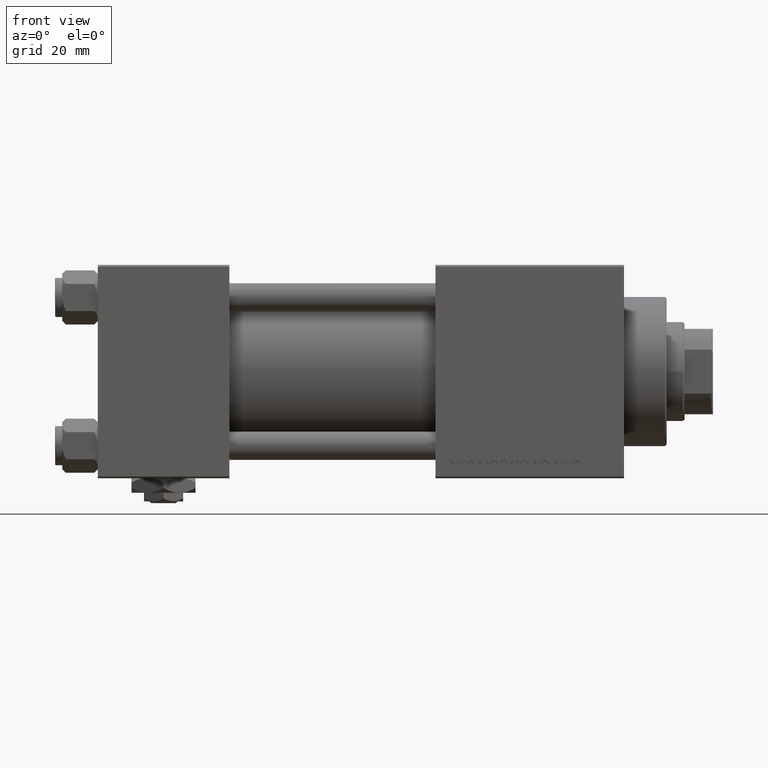
[diagram: clean part render]
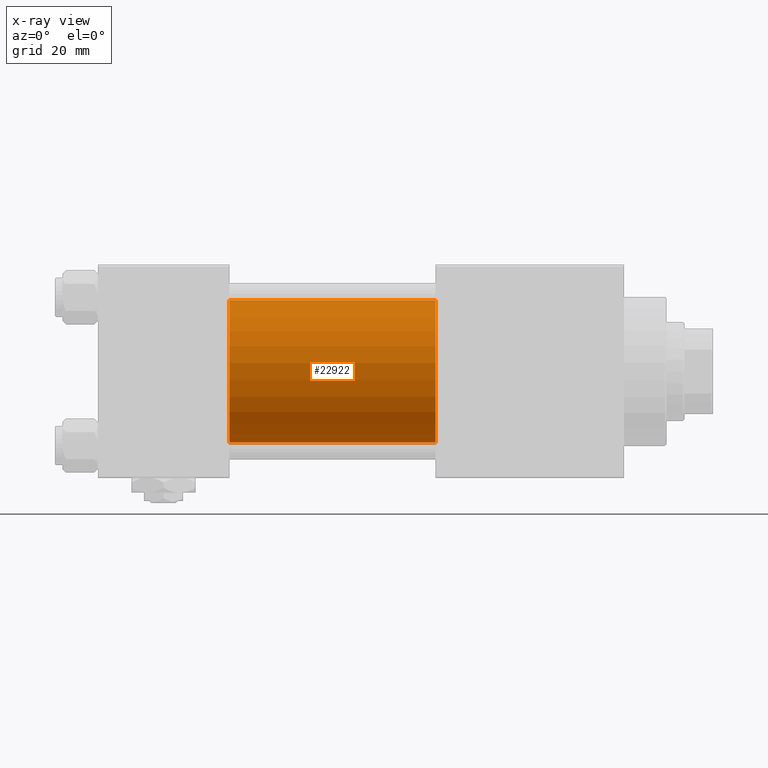
[diagram: x-ray — body ghosted, one internal face saturated and labeled with its STEP entity id]
A machine part, front view, then the same camera in x-ray: the body is ghosted and one INTERNAL B-rep face — a face not visible from any outside direction — is saturated and labeled: STEP entity #22922.
In plain terms, the highlighted cylindrical surface (partial cylindrical patch) has radius 20 mm, axis along (-1, -0, -0).
Its self-contained STEP definition (entity closure, byte-faithful):
#1355 = EDGE_CURVE ( 'NONE', #34434, #28710, #23302, .T. ) ;
#5705 = LINE ( 'NONE', #21802, #45223 ) ;
#8436 = ORIENTED_EDGE ( 'NONE', *, *, #29614, .F. ) ;
#11823 = CARTESIAN_POINT ( 'NONE',  ( 37.00000000000000000, -1.527916156705046464E-16, -20.00000000000000000 ) ) ;
#12163 = AXIS2_PLACEMENT_3D ( 'NONE', #46679, #42208, #15037 ) ;
#12575 = DIRECTION ( 'NONE',  ( 1.000000000000000000, 0.000000000000000000, 0.000000000000000000 ) ) ;
#14463 = AXIS2_PLACEMENT_3D ( 'NONE', #45313, #32937, #21558 ) ;
#15037 = DIRECTION ( 'NONE',  ( 0.000000000000000000, 0.000000000000000000, -1.000000000000000000 ) ) ;
#15438 = CARTESIAN_POINT ( 'NONE',  ( 95.00000000000000000, -1.527916156705046464E-16, -20.00000000000000000 ) ) ;
#15958 = LINE ( 'NONE', #15438, #41259 ) ;
#17306 = EDGE_LOOP ( 'NONE', ( #48999, #34643, #8436, #39139 ) ) ;
#18310 = CARTESIAN_POINT ( 'NONE',  ( 95.00000000000000000, -2.602085213965210642E-15, 20.00000000000000000 ) ) ;
#19073 = AXIS2_PLACEMENT_3D ( 'NONE', #48729, #12575, #28698 ) ;
#19578 = CARTESIAN_POINT ( 'NONE',  ( 95.00000000000000000, -1.527916156705046464E-16, -20.00000000000000000 ) ) ;
#21558 = DIRECTION ( 'NONE',  ( 0.000000000000000000, 0.000000000000000000, 1.000000000000000000 ) ) ;
#21802 = CARTESIAN_POINT ( 'NONE',  ( 95.00000000000000000, -2.602085213965210642E-15, 20.00000000000000000 ) ) ;
#22922 = ADVANCED_FACE ( 'NONE', ( #25011 ), #29231, .F. ) ;
#23302 = CIRCLE ( 'NONE', #19073, 20.00000000000000000 ) ;
#25011 = FACE_OUTER_BOUND ( 'NONE', #17306, .T. ) ;
#25662 = CIRCLE ( 'NONE', #12163, 20.00000000000000000 ) ;
#26820 = DIRECTION ( 'NONE',  ( -1.000000000000000000, -0.000000000000000000, -0.000000000000000000 ) ) ;
#28698 = DIRECTION ( 'NONE',  ( 0.000000000000000000, 0.000000000000000000, -1.000000000000000000 ) ) ;
#28710 = VERTEX_POINT ( 'NONE', #19578 ) ;
#29231 = CYLINDRICAL_SURFACE ( 'NONE', #14463, 20.00000000000000000 ) ;
#29614 = EDGE_CURVE ( 'NONE', #41429, #47638, #25662, .T. ) ;
#32937 = DIRECTION ( 'NONE',  ( -1.000000000000000000, -0.000000000000000000, -0.000000000000000000 ) ) ;
#34434 = VERTEX_POINT ( 'NONE', #18310 ) ;
#34643 = ORIENTED_EDGE ( 'NONE', *, *, #51996, .T. ) ;
#38680 = EDGE_CURVE ( 'NONE', #34434, #41429, #5705, .T. ) ;
#39139 = ORIENTED_EDGE ( 'NONE', *, *, #38680, .F. ) ;
#41259 = VECTOR ( 'NONE', #51840, 1000.000000000000000 ) ;
#41429 = VERTEX_POINT ( 'NONE', #49877 ) ;
#42208 = DIRECTION ( 'NONE',  ( 1.000000000000000000, 0.000000000000000000, 0.000000000000000000 ) ) ;
#45223 = VECTOR ( 'NONE', #26820, 1000.000000000000000 ) ;
#45313 = CARTESIAN_POINT ( 'NONE',  ( 95.00000000000000000, -2.602085213965210642E-15, 0.000000000000000000 ) ) ;
#46679 = CARTESIAN_POINT ( 'NONE',  ( 37.00000000000000000, -2.602085213965210642E-15, 0.000000000000000000 ) ) ;
#47638 = VERTEX_POINT ( 'NONE', #11823 ) ;
#48729 = CARTESIAN_POINT ( 'NONE',  ( 95.00000000000000000, -2.602085213965210642E-15, 0.000000000000000000 ) ) ;
#48999 = ORIENTED_EDGE ( 'NONE', *, *, #1355, .T. ) ;
#49877 = CARTESIAN_POINT ( 'NONE',  ( 37.00000000000000000, -2.602085213965210642E-15, 20.00000000000000000 ) ) ;
#51840 = DIRECTION ( 'NONE',  ( -1.000000000000000000, -0.000000000000000000, -0.000000000000000000 ) ) ;
#51996 = EDGE_CURVE ( 'NONE', #28710, #47638, #15958, .T. ) ;